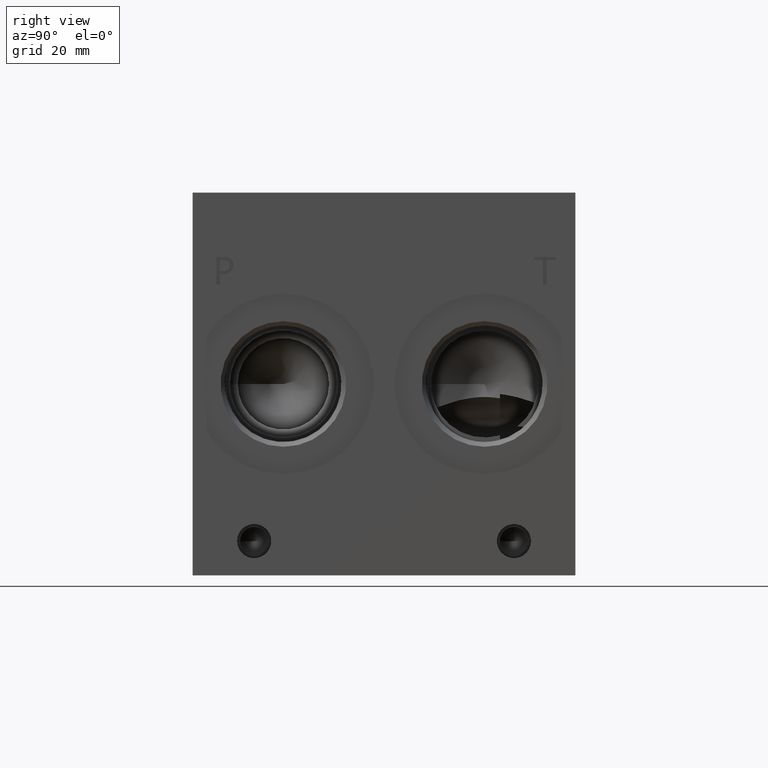
[diagram: clean part render]
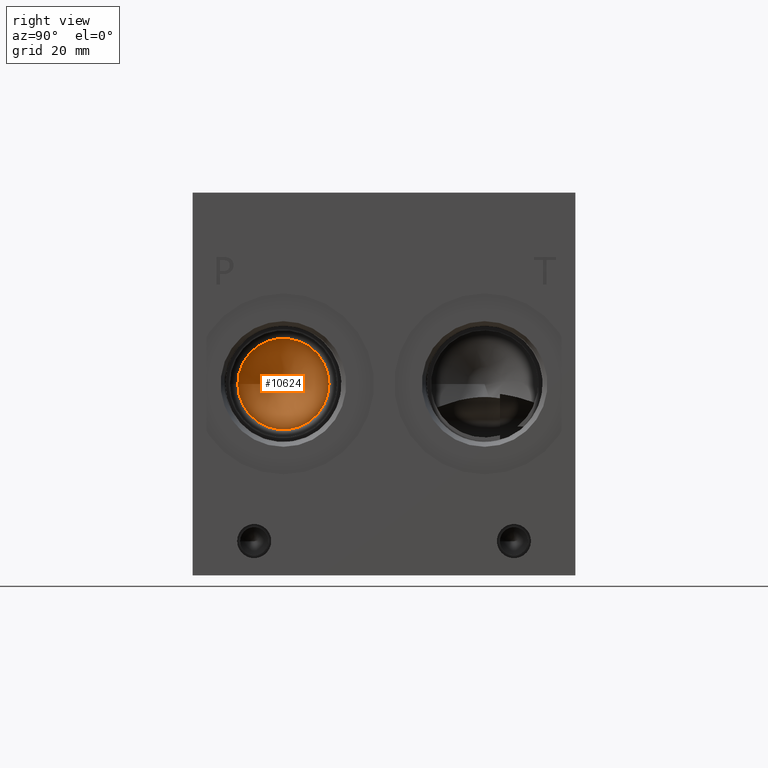
[diagram: same view with one face highlighted and labeled with its STEP entity id]
A machine part, right view. The second image highlights one B-rep face of the part: STEP entity #10624.
In plain terms, the highlighted conical surface has half-angle 60 deg.
Its self-contained STEP definition (entity closure, byte-faithful):
#72=CONICAL_SURFACE('',#11073,5.2959,1.0471975511966);
#138=CIRCLE('',#11074,10.5918);
#139=CIRCLE('',#11075,10.5918);
#1143=FACE_OUTER_BOUND('',#1741,.T.);
#1741=EDGE_LOOP('',(#9029,#9030,#9031,#9032));
#2777=LINE('',#17913,#3763);
#3763=VECTOR('',#12910,5.2959);
#4962=VERTEX_POINT('',#17909);
#4963=VERTEX_POINT('',#17910);
#4964=VERTEX_POINT('',#17912);
#6375=EDGE_CURVE('',#4962,#4963,#138,.T.);
#6376=EDGE_CURVE('',#4963,#4964,#2777,.T.);
#6377=EDGE_CURVE('',#4963,#4962,#139,.T.);
#9029=ORIENTED_EDGE('',*,*,#6375,.T.);
#9030=ORIENTED_EDGE('',*,*,#6376,.T.);
#9031=ORIENTED_EDGE('',*,*,#6376,.F.);
#9032=ORIENTED_EDGE('',*,*,#6377,.T.);
#10624=ADVANCED_FACE('',(#1143),#72,.F.);
#11073=AXIS2_PLACEMENT_3D('',#17908,#12906,#12907);
#11074=AXIS2_PLACEMENT_3D('',#17911,#12908,#12909);
#11075=AXIS2_PLACEMENT_3D('',#17914,#12911,#12912);
#12906=DIRECTION('center_axis',(1.,0.,0.));
#12907=DIRECTION('ref_axis',(0.,1.,0.));
#12908=DIRECTION('center_axis',(1.,0.,0.));
#12909=DIRECTION('ref_axis',(0.,1.,0.));
#12910=DIRECTION('',(-0.5,0.866025403784438,1.06057523872491E-16));
#12911=DIRECTION('center_axis',(1.,0.,0.));
#12912=DIRECTION('ref_axis',(0.,1.,0.));
#17908=CARTESIAN_POINT('Origin',(80.5060007093986,21.082,44.45));
#17909=CARTESIAN_POINT('',(83.56359,31.6738,44.45));
#17910=CARTESIAN_POINT('',(83.56359,10.4902,44.45));
#17911=CARTESIAN_POINT('Origin',(83.56359,21.082,44.45));
#17912=CARTESIAN_POINT('',(77.4484114187973,21.082,44.45));
#17913=CARTESIAN_POINT('',(80.5060007093986,15.7861,44.45));
#17914=CARTESIAN_POINT('Origin',(83.56359,21.082,44.45));